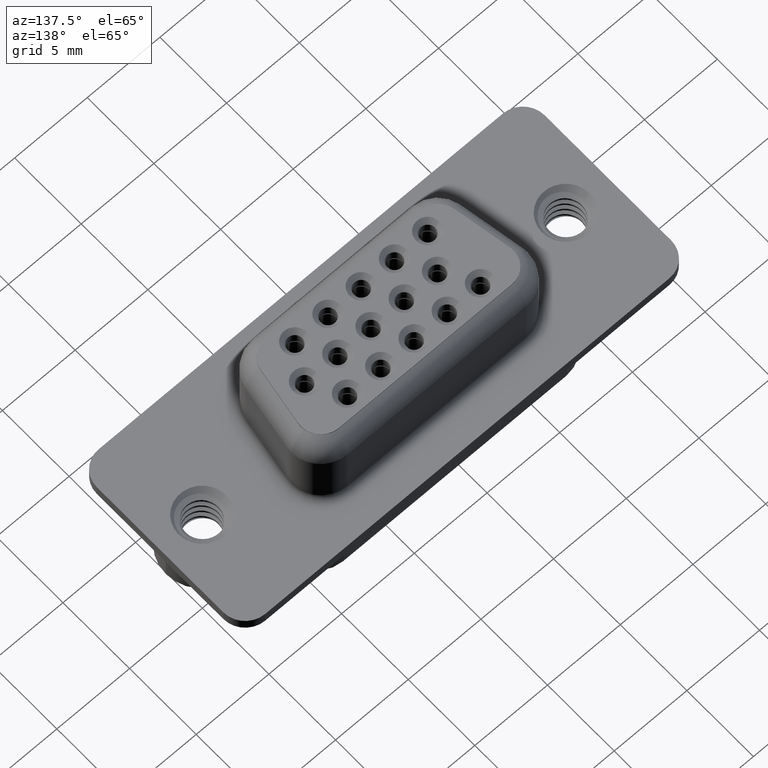
[diagram: clean part render]
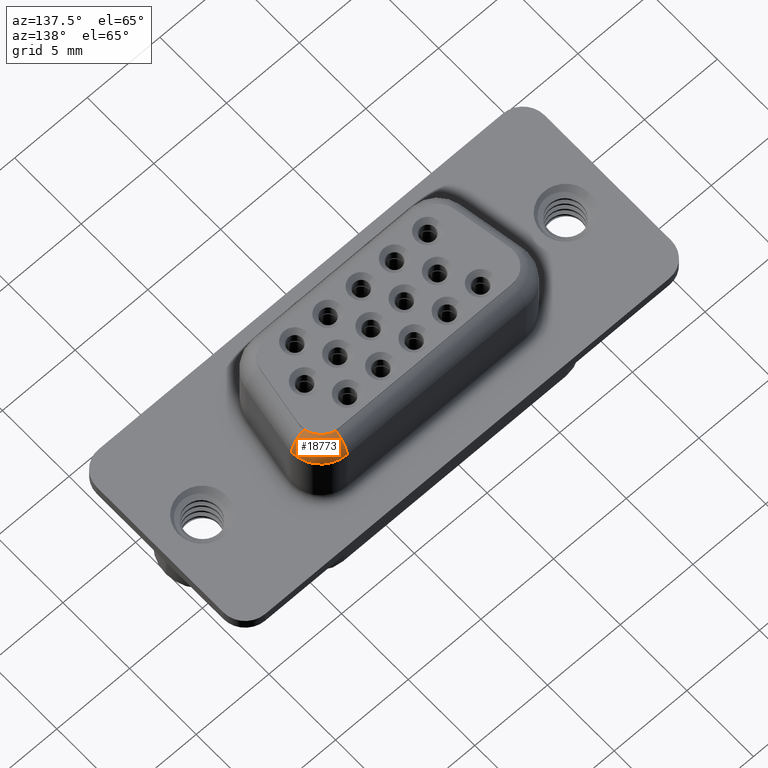
[diagram: same view with one face highlighted and labeled with its STEP entity id]
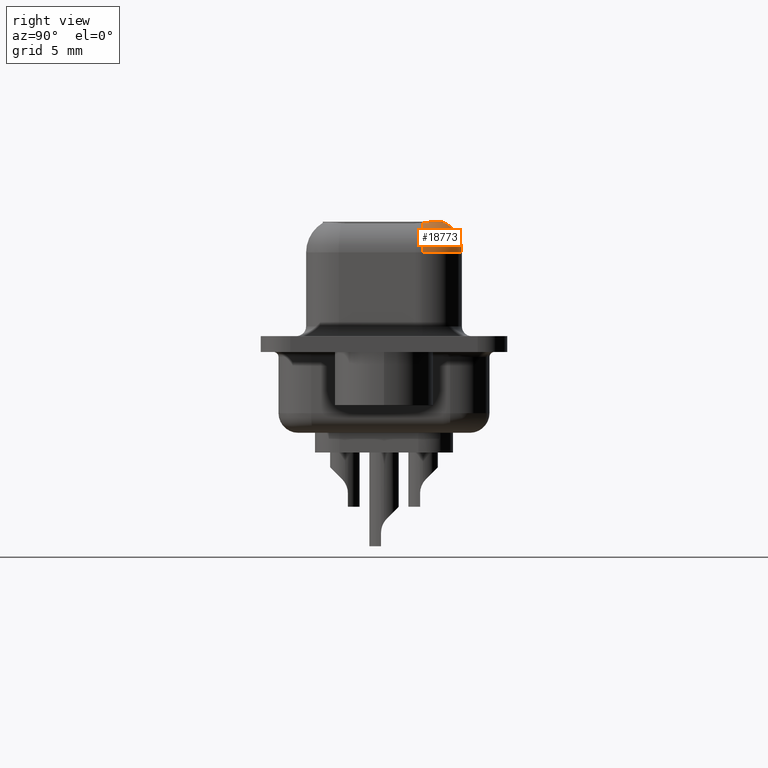
[diagram: same view with one face highlighted and labeled with its STEP entity id]
A machine part, auxiliary view. The second image highlights one B-rep face of the part: STEP entity #18773.
A second angle (right view) of the same face is appended — the face is thin or edge-on in the first view.
In plain terms, the highlighted toroidal blend (fillet) surface has major radius 0.25 mm and minor (blend) radius 1.75 mm.
Its self-contained STEP definition (entity closure, byte-faithful):
#706 = ORIENTED_EDGE ( 'NONE', *, *, #5727, .F. ) ;
#1027 = DIRECTION ( 'NONE',  ( -0.0000000000000000000, -0.0000000000000000000, -1.000000000000000000 ) ) ;
#1446 = DIRECTION ( 'NONE',  ( -1.224646799147353207E-16, 1.000000000000000000, 0.0000000000000000000 ) ) ;
#2079 = EDGE_CURVE ( 'NONE', #14007, #13131, #17150, .T. ) ;
#2109 = DIRECTION ( 'NONE',  ( -1.000000000000000000, 0.0000000000000000000, 0.0000000000000000000 ) ) ;
#2110 = CARTESIAN_POINT ( 'NONE',  ( 19.74272650463323586, 2.232884877310590710, 6.184511347506526313 ) ) ;
#2283 = VERTEX_POINT ( 'NONE', #15298 ) ;
#2929 = AXIS2_PLACEMENT_3D ( 'NONE', #8962, #1446, #4269 ) ;
#3081 = EDGE_CURVE ( 'NONE', #13131, #4968, #11363, .T. ) ;
#3375 = TOROIDAL_SURFACE ( 'NONE', #17780, 0.2500000000000013323, 1.750000000000000000 ) ;
#3472 = CARTESIAN_POINT ( 'NONE',  ( 18.65000000000000924, 3.085102992281863798, 6.159666417806824334 ) ) ;
#3660 = CARTESIAN_POINT ( 'NONE',  ( 18.92850469372288913, 3.020573377989425712, 6.181528888010068279 ) ) ;
#4269 = DIRECTION ( 'NONE',  ( -1.000000000000000000, -1.239088197126289584E-16, 0.0000000000000000000 ) ) ;
#4968 = VERTEX_POINT ( 'NONE', #18768 ) ;
#5727 = EDGE_CURVE ( 'NONE', #2283, #4968, #15202, .T. ) ;
#6531 = CARTESIAN_POINT ( 'NONE',  ( 18.65000000000000924, 1.949999999999996847, 4.650000000000000355 ) ) ;
#6737 = AXIS2_PLACEMENT_3D ( 'NONE', #6531, #17135, #12536 ) ;
#7066 = FACE_OUTER_BOUND ( 'NONE', #9336, .T. ) ;
#7674 = EDGE_CURVE ( 'NONE', #14007, #2283, #15278, .T. ) ;
#8962 = CARTESIAN_POINT ( 'NONE',  ( 18.90000000000000924, 1.949999999999996847, 4.650000000000000355 ) ) ;
#9336 = EDGE_LOOP ( 'NONE', ( #16314, #18406, #706, #18459 ) ) ;
#9344 = CARTESIAN_POINT ( 'NONE',  ( 18.65000000000000924, 2.199999999999997957, 4.650000000000000355 ) ) ;
#9436 = CARTESIAN_POINT ( 'NONE',  ( 19.60827127832653005, 2.500965297078812100, 6.197504039113225005 ) ) ;
#9630 = CARTESIAN_POINT ( 'NONE',  ( 19.30258594912366732, 2.806578206883003634, 6.197496872207634233 ) ) ;
#11363 = CIRCLE ( 'NONE', #2929, 1.750000000000001554 ) ;
#12493 = CARTESIAN_POINT ( 'NONE',  ( 18.79270600932038704, 3.063725464084361860, 6.172199858275538631 ) ) ;
#12536 = DIRECTION ( 'NONE',  ( -1.000000000000000000, 0.0000000000000000000, 0.0000000000000000000 ) ) ;
#12691 = CARTESIAN_POINT ( 'NONE',  ( 19.78510299228197411, 1.949999999999919575, 6.159666417807130756 ) ) ;
#13131 = VERTEX_POINT ( 'NONE', #17974 ) ;
#14007 = VERTEX_POINT ( 'NONE', #16520 ) ;
#14537 = CARTESIAN_POINT ( 'NONE',  ( 18.65000000000000924, 1.949999999999996847, 4.650000000000000355 ) ) ;
#15202 = CIRCLE ( 'NONE', #6737, 2.000000000000001776 ) ;
#15278 = CIRCLE ( 'NONE', #19351, 1.749999999999999778 ) ;
#15298 = CARTESIAN_POINT ( 'NONE',  ( 18.65000000000000924, 3.949999999999998845, 4.650000000000000355 ) ) ;
#15326 = DIRECTION ( 'NONE',  ( 0.0000000000000000000, 0.0000000000000000000, 1.000000000000000000 ) ) ;
#16314 = ORIENTED_EDGE ( 'NONE', *, *, #2079, .T. ) ;
#16520 = CARTESIAN_POINT ( 'NONE',  ( 18.65000000000000924, 3.085102992281863798, 6.159666417806824334 ) ) ;
#17135 = DIRECTION ( 'NONE',  ( -0.0000000000000000000, -0.0000000000000000000, -1.000000000000000000 ) ) ;
#17150 = B_SPLINE_CURVE_WITH_KNOTS ( 'NONE', 3,
 ( #3472, #12493, #3660, #18565, #9630, #9436, #2110, #12691 ),
 .UNSPECIFIED., .F., .F.,
 ( 4, 2, 2, 4 ),
 ( 2.001126706801159008E-07, 0.0004285692557467567351, 0.0008569383988228332794, 0.001713676684974987452 ),
 .UNSPECIFIED. ) ;
#17780 = AXIS2_PLACEMENT_3D ( 'NONE', #14537, #1027, #18938 ) ;
#17974 = CARTESIAN_POINT ( 'NONE',  ( 19.78510299228197411, 1.949999999999919575, 6.159666417807130756 ) ) ;
#18406 = ORIENTED_EDGE ( 'NONE', *, *, #3081, .T. ) ;
#18459 = ORIENTED_EDGE ( 'NONE', *, *, #7674, .F. ) ;
#18565 = CARTESIAN_POINT ( 'NONE',  ( 19.18625179510390666, 2.890726411098015092, 6.194329329162997944 ) ) ;
#18768 = CARTESIAN_POINT ( 'NONE',  ( 20.65000000000001279, 1.949999999999997069, 4.650000000000000355 ) ) ;
#18773 = ADVANCED_FACE ( 'NONE', ( #7066 ), #3375, .T. ) ;
#18938 = DIRECTION ( 'NONE',  ( -1.000000000000000000, 0.0000000000000000000, 0.0000000000000000000 ) ) ;
#19351 = AXIS2_PLACEMENT_3D ( 'NONE', #9344, #2109, #15326 ) ;